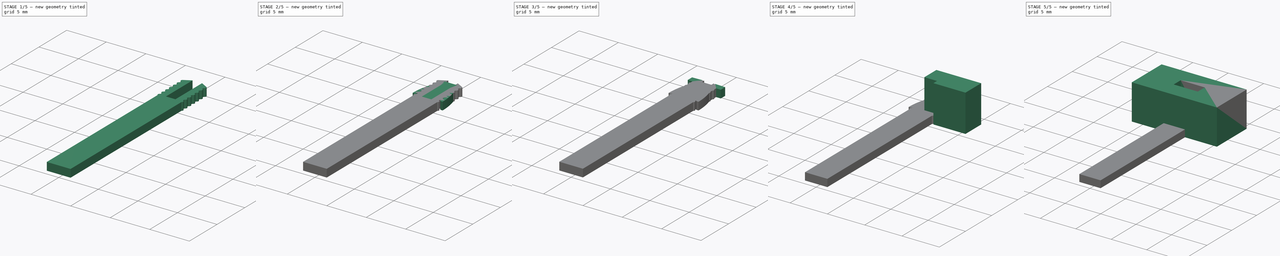
[diagram: build sequence overview — one tinted view per stage of 5, left to right]
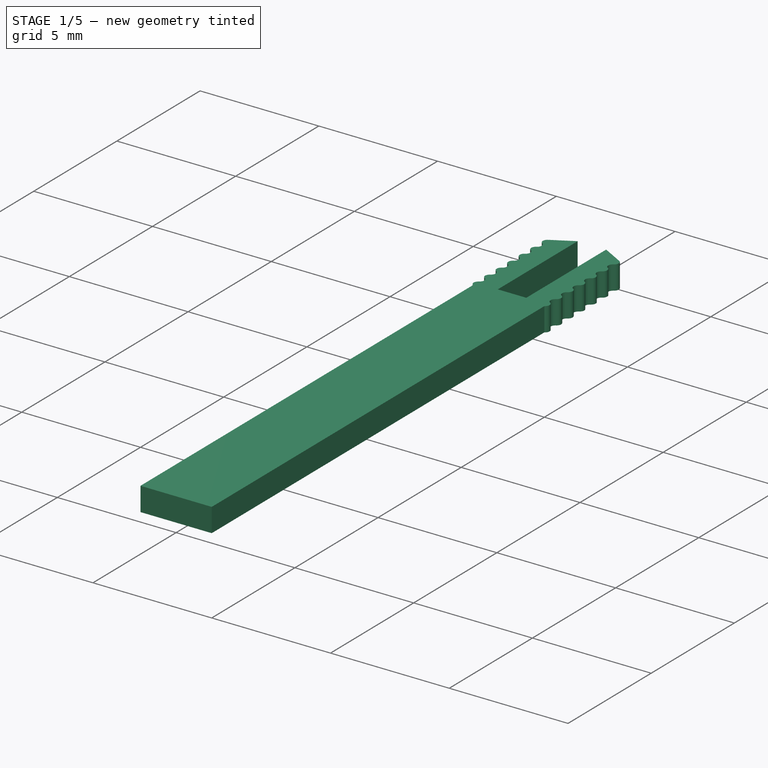
[diagram: stage 1 of 5 — iso view after this stage's code; geometry added in this stage tinted green]
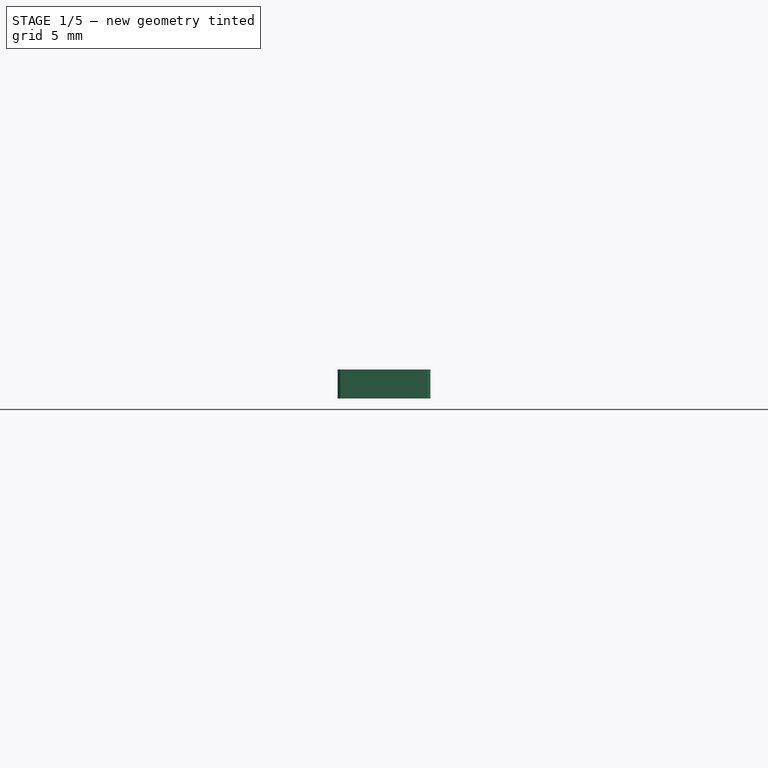
[diagram: stage 1 of 5 — front view after this stage's code; geometry added in this stage tinted green]
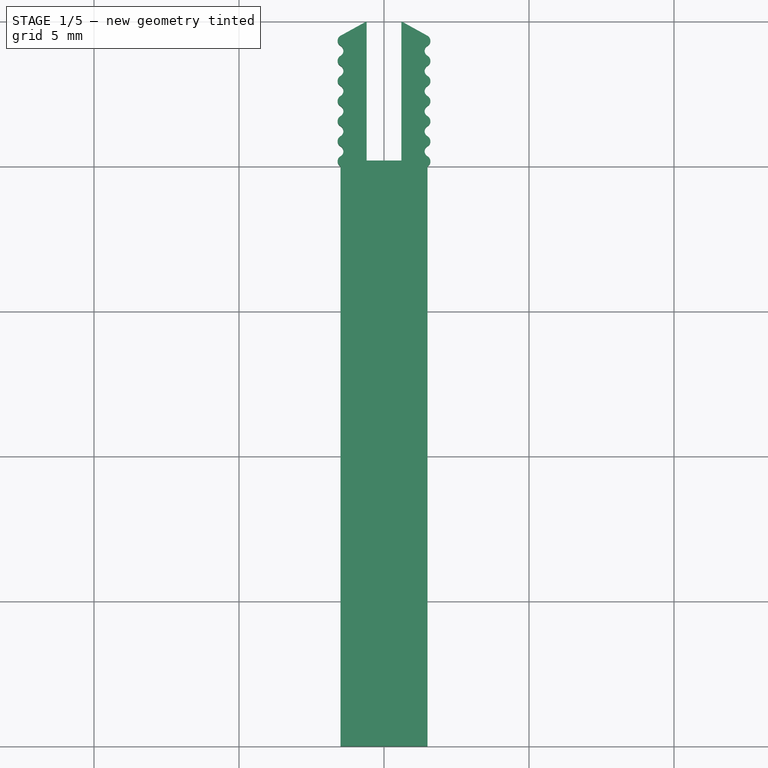
[diagram: stage 1 of 5 — top view after this stage's code; geometry added in this stage tinted green]
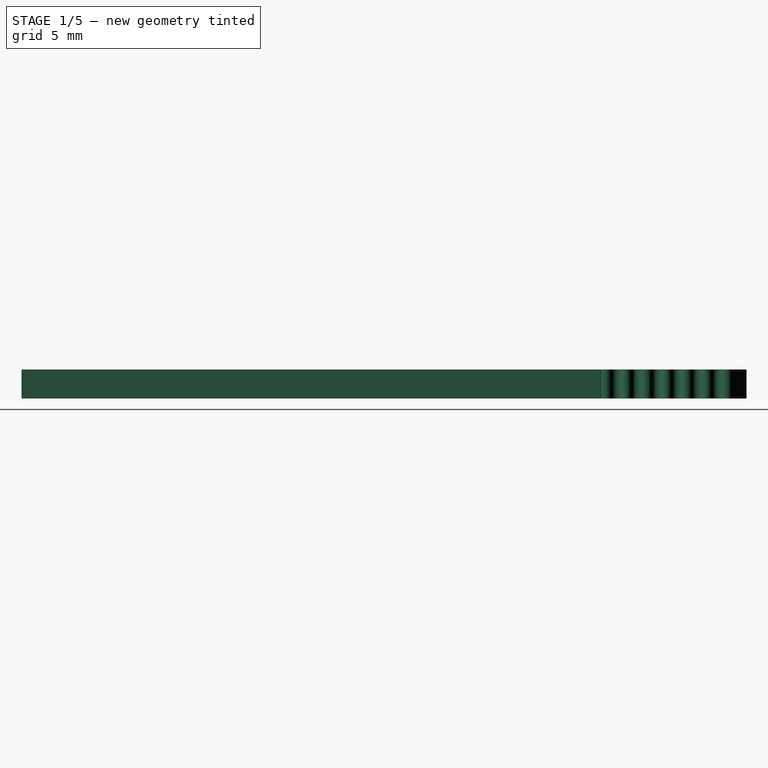
[diagram: stage 1 of 5 — right view after this stage's code; geometry added in this stage tinted green]
FCSTD DOCUMENT  (FreeCAD 1.0R38641 +468 (Git))
Label: pressfit-testing
License: All rights reserved
LicenseURL: http://en.wikipedia.org/wiki/All_rights_reserved
objects: Sketcher::SketchObject×9, PartDesign::Pad×9, PartDesign::Mirrored×7, PartDesign::Body×6, PartDesign::Fillet×2, PartDesign::MultiTransform×1
note: 73 computed .brp shape members not serialized (recipe doc carries the construction recipe); baked Part::Feature solids carry a one-line shape summary decoded from their .brp

FEATURE [PartDesign::Body] Body004  label="Hooks"
  AllowCompound = false
  Group = -> [Sketch007,Pad005,Fillet001,Mirrored006,Pad006]
  Origin = -> Origin004
  Tip = -> Pad006
FEATURE [Sketcher::SketchObject] Sketch008
  ArcFitTolerance = 1e-06
  AttachmentSupport = -> [XY_Plane005]
  FullyConstrained = false
  MakeInternals = false
  MapMode = 5
  sketch-geometry (19):
    g0: LineSegment StartX=0 StartY=0.2 StartZ=0 EndX=0.6 EndY=0.2 EndZ=0
    g1: LineSegment StartX=0.6 StartY=0.2 StartZ=0 EndX=0.6 EndY=5 EndZ=0
    g2: LineSegment StartX=0 StartY=0 StartZ=0 EndX=0 EndY=0.2 EndZ=0
    g3: ArcOfCircle CenterX=1.4 CenterY=4.33013 CenterZ=0 NormalX=0 NormalY=0 NormalZ=1 AngleXU=0 Radius=0.2 StartAngle=5.23599 EndAngle=7.34975
    g4: ArcOfCircle CenterX=1.6 CenterY=3.98372 CenterZ=0 NormalX=0 NormalY=0 NormalZ=1 AngleXU=0 Radius=0.2 StartAngle=2.0944 EndAngle=4.18879
    g5: ArcOfCircle CenterX=1.4 CenterY=3.63731 CenterZ=0 NormalX=0 NormalY=0 NormalZ=1 AngleXU=0 Radius=0.2 StartAngle=5.23599 EndAngle=7.33038
    g6: ArcOfCircle CenterX=1.6 CenterY=3.2909 CenterZ=0 NormalX=0 NormalY=0 NormalZ=1 AngleXU=0 Radius=0.2 StartAngle=2.0944 EndAngle=4.18879
    g7: ArcOfCircle CenterX=1.4 CenterY=2.94449 CenterZ=0 NormalX=0 NormalY=0 NormalZ=1 AngleXU=0 Radius=0.2 StartAngle=5.23599 EndAngle=7.33038
    g8: ArcOfCircle CenterX=1.6 CenterY=2.59808 CenterZ=0 NormalX=0 NormalY=0 NormalZ=1 AngleXU=0 Radius=0.2 StartAngle=2.0944 EndAngle=4.18879
    g9: ArcOfCircle CenterX=1.4 CenterY=2.25167 CenterZ=0 NormalX=0 NormalY=0 NormalZ=1 AngleXU=0 Radius=0.2 StartAngle=5.23599 EndAngle=7.33038
    g10: LineSegment StartX=1.49663 StartY=4.50524 StartZ=0 EndX=0.6 EndY=5 EndZ=0
    g11: LineSegment [constr] StartX=1.4 StartY=4.33013 StartZ=0 EndX=1.4 EndY=-0.280357 EndZ=0
    g12: ArcOfCircle CenterX=1.6 CenterY=1.90526 CenterZ=0 NormalX=0 NormalY=0 NormalZ=1 AngleXU=0 Radius=0.2 StartAngle=2.0944 EndAngle=4.18879
    g13: ArcOfCircle CenterX=1.4 CenterY=1.55885 CenterZ=0 NormalX=0 NormalY=0 NormalZ=1 AngleXU=0 Radius=0.2 StartAngle=5.23599 EndAngle=7.33038
    g14: ArcOfCircle CenterX=1.6 CenterY=1.21244 CenterZ=0 NormalX=0 NormalY=0 NormalZ=1 AngleXU=0 Radius=0.2 StartAngle=2.0944 EndAngle=4.18879
    g15: LineSegment StartX=0 StartY=0 StartZ=0 EndX=1.5 EndY=0 EndZ=0
    g16: ArcOfCircle CenterX=1.4 CenterY=0.866025 CenterZ=0 NormalX=0 NormalY=0 NormalZ=1 AngleXU=0 Radius=0.2 StartAngle=5.23599 EndAngle=7.33038
    g17: ArcOfCircle CenterX=1.6 CenterY=0.519615 CenterZ=0 NormalX=0 NormalY=0 NormalZ=1 AngleXU=0 Radius=0.2 StartAngle=2.0944 EndAngle=4.18879
    g18: ArcOfCircle CenterX=1.4 CenterY=0.173205 CenterZ=0 NormalX=0 NormalY=0 NormalZ=1 AngleXU=0 Radius=0.2 StartAngle=5.23599 EndAngle=7.33038
  constraints (56):
    c: PointOnObject(g0,g-2)
    c: Horizontal(g0)
    c: Coincident(g1,g0)
    c: Vertical(g1)
    c: Coincident(g2,g0)
    c: Tangent(g4,g3) = 1.5708
    c: Tangent(g5,g4) = 1.5708
    c: Tangent(g6,g5) = 1.5708
    c: Tangent(g7,g6) = 1.5708
    c: Tangent(g8,g7) = 1.5708
    c: Tangent(g9,g8) = 1.5708
    c: Equal(g3,g4)
    c: Equal(g4,g5)
    c: Equal(g5,g6)
    c: Equal(g6,g7)
    c: Equal(g7,g8)
    c: Equal(g8,g9)
    c: Vertical(g3,g4)
    c: Vertical(g4,g5)
    c: Vertical(g5,g6)
    c: Vertical(g6,g7)
    c: Vertical(g7,g8)
    c: Distance(g2,g2) = 0.2
    c: DistanceY(g-1,g1) = 5
    c: Coincident(g10,g1)
    c: Tangent(g10,g3) = -1.5708
    c: Coincident(g11,g3)
    c: Vertical(g11)
    c: Coincident(g-1,g2)
    c: Equal(g9,g12)
    c: Equal(g12,g13)
    c: Equal(g13,g14)
    c: Tangent(g12,g9) = 1.5708
    c: Tangent(g13,g12) = 1.5708
    c: Tangent(g14,g13) = 1.5708
    c: Vertical(g14,g13)
    c: Vertical(g13,g12)
    c: Vertical(g12,g9)
    c: Tangent(g4,g11)
    c: Vertical(g9,g8)
    c: Coincident(g15,g2)
    c: Horizontal(g15)
    c: DistanceX(g0,g11) = 0.8
    c: Equal(g16,g14)
    c: Tangent(g16,g14) = 1.5708
    c: Vertical(g14,g16)
    c: DistanceX(g15,g15) = 1.5
    c: Vertical(g15,g16)
    c: Coincident(g17,g16)
    c: Equal(g17,g16)
    c: Tangent(g17,g11)
    c: Equal(g17,g18)
    c: Diameter(g18) = 0.4
    c: Tangent(g18,g17) = 1.5708
    c: Vertical(g17,g16)
    c: Coincident(g15,g18)
FEATURE [PartDesign::Pad] Pad007
  Direction = (0,0,1)
  Length = 1
  Length2 = 10
  Profile = -> Sketch008
  ReferenceAxis = -> Sketch008 [N_Axis]
  Refine = true
  Suppressed = false
  Type = 0
FEATURE [PartDesign::Mirrored] Mirrored007
  BaseFeature = -> Pad007
  MirrorPlane = -> Sketch008 [V_Axis]
  Originals = -> [Pad007]
  Refine = true
  Suppressed = false
  TransformMode = 0
FEATURE [PartDesign::Pad] Pad008
  BaseFeature = -> Mirrored007
  Direction = (0,-1,0)
  Length = 20
  Length2 = 10
  Profile = -> Mirrored007 [Face34]
  Refine = true
  Suppressed = false
  Type = 0
FEATURE [PartDesign::Body] Body005  label="Teeths"
  AllowCompound = false
  Group = -> [Sketch008,Pad007,Mirrored007,Pad008]
  Origin = -> Origin005
  Tip = -> Pad008
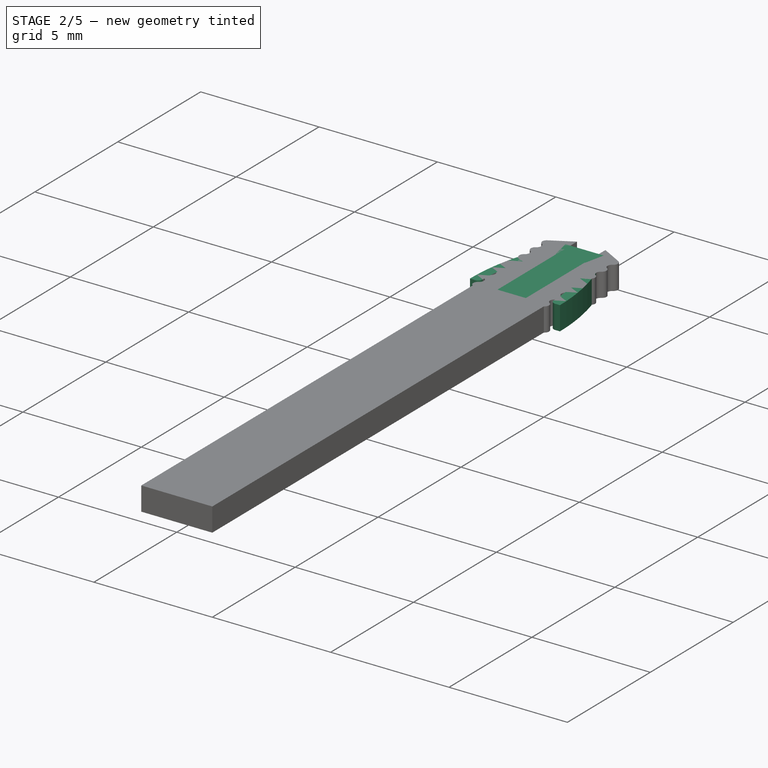
[diagram: stage 2 of 5 — iso view after this stage's code; geometry added in this stage tinted green]
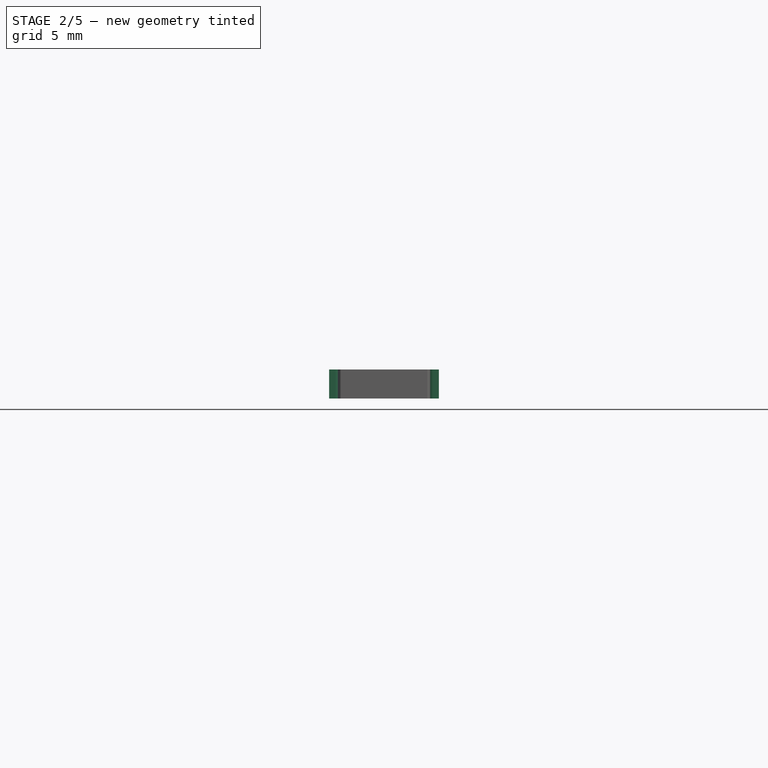
[diagram: stage 2 of 5 — front view after this stage's code; geometry added in this stage tinted green]
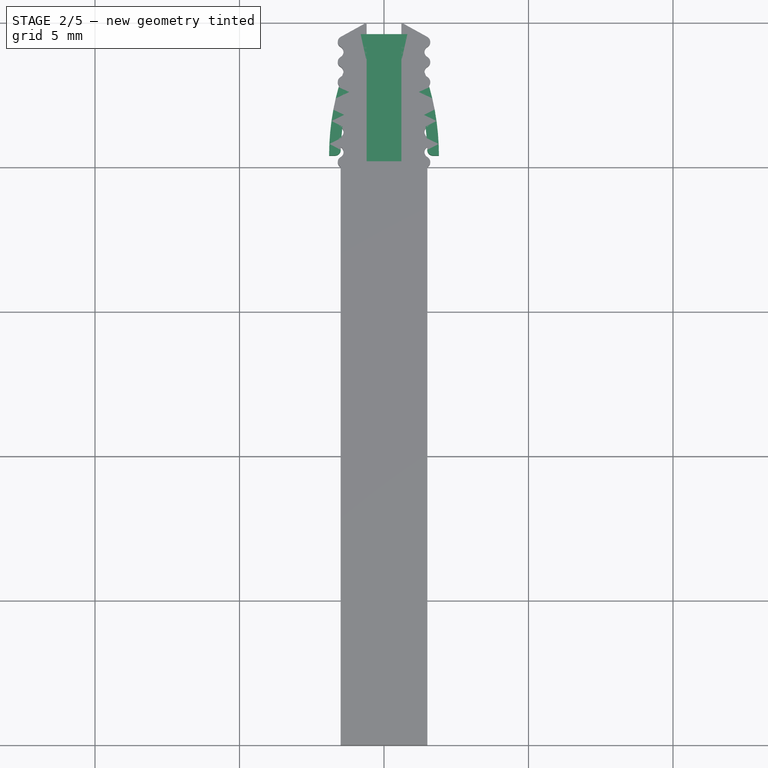
[diagram: stage 2 of 5 — top view after this stage's code; geometry added in this stage tinted green]
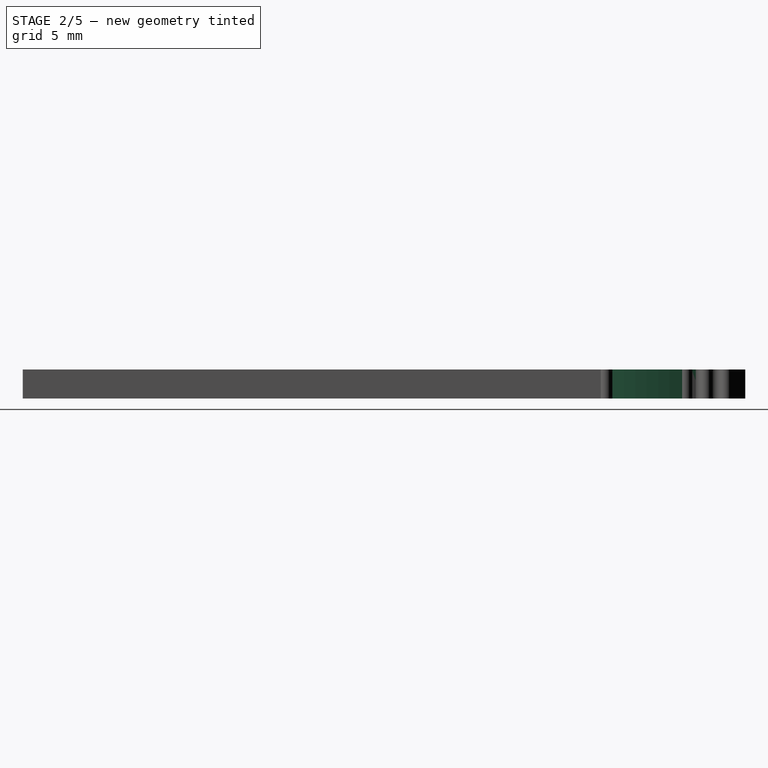
[diagram: stage 2 of 5 — right view after this stage's code; geometry added in this stage tinted green]
FEATURE [PartDesign::Body] Body003  label="Taps3"
  AllowCompound = false
  Group = -> [Sketch006,Pad003,Mirrored005,Pad004]
  Origin = -> Origin003
  Tip = -> Pad004
FEATURE [Sketcher::SketchObject] Sketch007
  ArcFitTolerance = 1e-06
  AttachmentSupport = -> [XY_Plane004]
  FullyConstrained = true
  MakeInternals = false
  MapMode = 5
  sketch-geometry (13):
    g0: LineSegment StartX=0 StartY=0 StartZ=0 EndX=0 EndY=4.6 EndZ=0
    g1: LineSegment StartX=0 StartY=0 StartZ=0 EndX=1.5 EndY=0 EndZ=0
    g2: LineSegment StartX=1.5 StartY=0 StartZ=0 EndX=1.5 EndY=0.2 EndZ=0
    g3: LineSegment StartX=1.9 StartY=0.4 StartZ=0 EndX=1.5 EndY=0.4 EndZ=0
    g4: LineSegment StartX=0.6 StartY=3.7 StartZ=0 EndX=0.6 EndY=0.2 EndZ=0
    g5: LineSegment StartX=0.6 StartY=0.2 StartZ=0 EndX=1.5 EndY=0.2 EndZ=0
    g6: Circle [constr] CenterX=1.69763 CenterY=0.6 CenterZ=0 NormalX=0 NormalY=0 NormalZ=1 AngleXU=0 Radius=0.2
    g7: ArcOfCircle CenterX=-6.72857 CenterY=0.4 CenterZ=0 NormalX=0 NormalY=0 NormalZ=1 AngleXU=0 Radius=8.62857 StartAngle=0 EndAngle=0.508371
    g8: ArcOfCircle CenterX=-6.72857 CenterY=0.4 CenterZ=0 NormalX=0 NormalY=0 NormalZ=1 AngleXU=0 Radius=8.22857 StartAngle=0 EndAngle=0.418046
    g9: ArcOfCircle CenterX=0.7 CenterY=3.7 CenterZ=0 NormalX=0 NormalY=0 NormalZ=1 AngleXU=0 Radius=0.1 StartAngle=0.418046 EndAngle=3.14159
    g10: LineSegment StartX=0.808818 StartY=4.6 StartZ=0 EndX=0 EndY=4.6 EndZ=0
    g11: LineSegment [constr] StartX=0.7 StartY=3.7 StartZ=0 EndX=1.9 EndY=0.4 EndZ=0
    g12: LineSegment [constr] StartX=0.7 StartY=3.7 StartZ=0 EndX=1.48243 EndY=0.276872 EndZ=0
  constraints (37):
    c: Coincident(g0,g-1)
    c: DistanceY(g0,g0) = 4.6
    c: Coincident(g1,g0)
    c: PointOnObject(g1,g-1)
    c: DistanceX(g1,g1) = 1.5
    c: Coincident(g2,g1)
    c: Vertical(g2)
    c: Horizontal(g3)
    c: DistanceY(g2,g2) = 0.2
    c: Vertical(g4)
    c: Coincident(g5,g2)
    c: Horizontal(g5)
    c: Tangent(g3,g6)
    c: Coincident(g3,g7)
    c: Tangent(g6,g7)
    c: Coincident(g8,g3)
    c: Tangent(g8,g6)
    c: Coincident(g8,g7)
    c: Perpendicular(g7,g3)
    c: PointOnObject(g0,g-2)
    c: DistanceX(g5,g5) = 0.9
    c: Diameter(g9) = 0.2
    c: Tangent(g9,g4) = -1.5708
    c: Tangent(g9,g8) = -1.5708
    c: DistanceY(g2,g3) = 0.2
    c: Coincident(g10,g7)
    c: Coincident(g10,g0)
    c: Horizontal(g10)
    c: Coincident(g5,g4)
    c: PointOnObject(g3,g2)
    c: Coincident(g11,g9)
    c: Coincident(g11,g3)
    c: Coincident(g12,g9)
    c: PointOnObject(g2,g12)
    c: Equal(g11,g12)
    c: Diameter(g6) = 0.4
    c: Distance(g9,g10) = 0.8
FEATURE [PartDesign::Pad] Pad005
  Direction = (0,0,1)
  Length = 1
  Length2 = 10
  Profile = -> Sketch007
  ReferenceAxis = -> Sketch007 [N_Axis]
  Refine = true
  Suppressed = false
  Type = 0
FEATURE [PartDesign::Fillet] Fillet001
  Base = -> Pad005 [Edge2]
  BaseFeature = -> Pad005
  Radius = 0.2
  Refine = true
  SupportTransform = false
  Suppressed = false
  UseAllEdges = false
FEATURE [PartDesign::Mirrored] Mirrored006
  BaseFeature = -> Fillet001
  MirrorPlane = -> Sketch007 [V_Axis]
  Originals = -> [Pad005,Fillet001]
  Refine = true
  Suppressed = false
  TransformMode = 0
FEATURE [PartDesign::Pad] Pad006
  BaseFeature = -> Mirrored006
  Direction = (0,-1,0)
  Length = 20
  Length2 = 10
  Profile = -> Mirrored006 [Face20]
  Refine = true
  Suppressed = false
  Type = 0
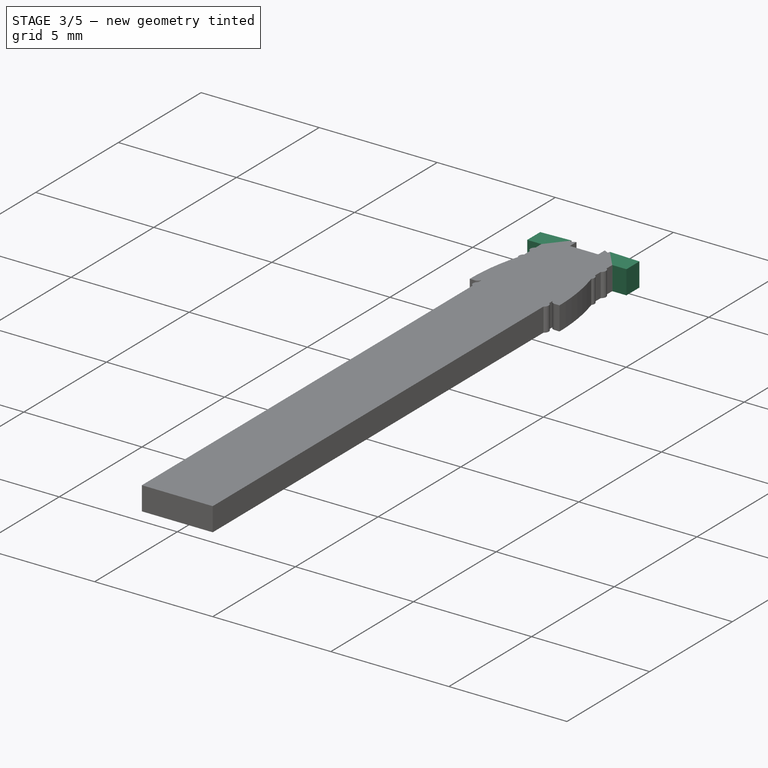
[diagram: stage 3 of 5 — iso view after this stage's code; geometry added in this stage tinted green]
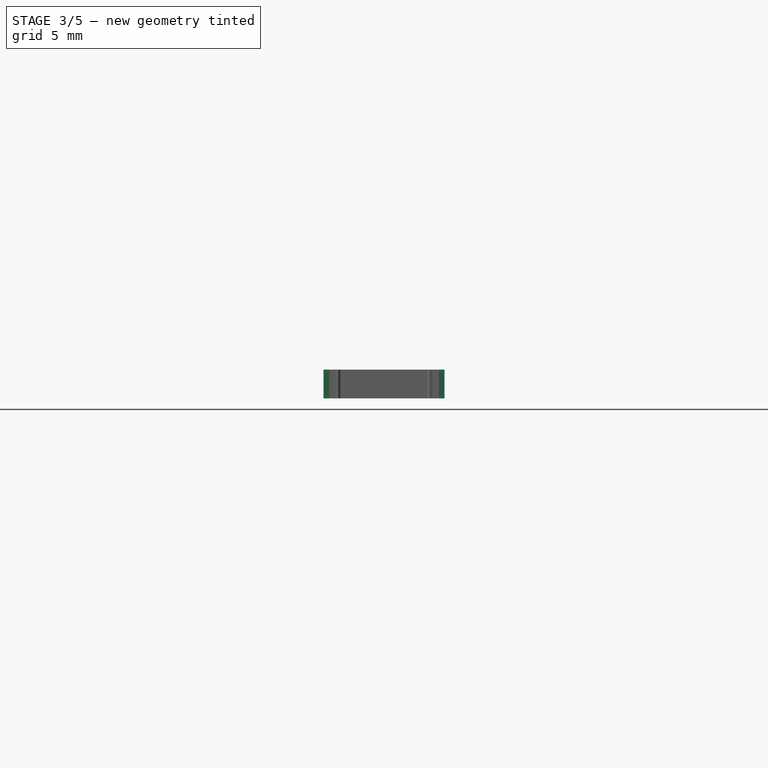
[diagram: stage 3 of 5 — front view after this stage's code; geometry added in this stage tinted green]
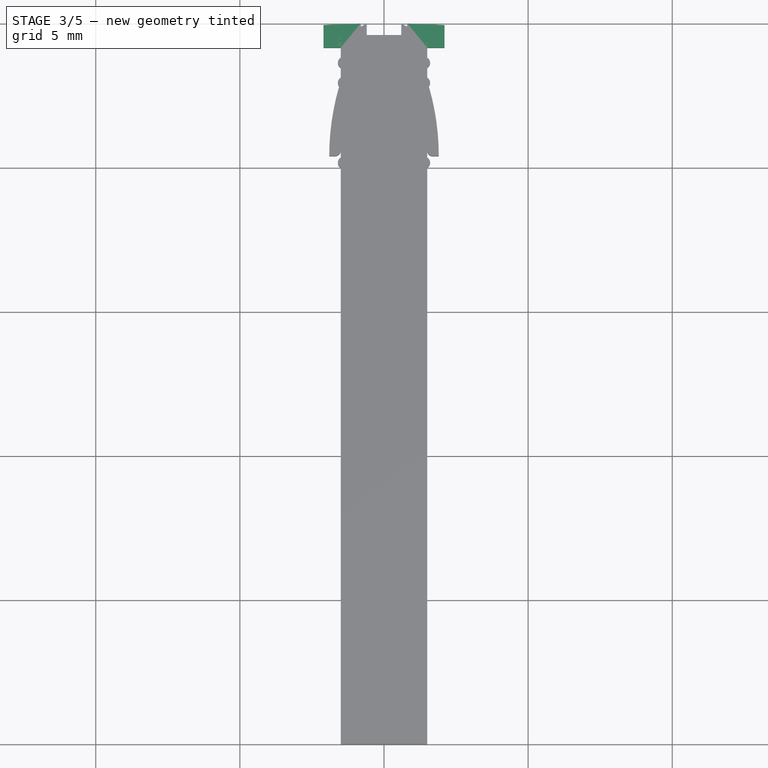
[diagram: stage 3 of 5 — top view after this stage's code; geometry added in this stage tinted green]
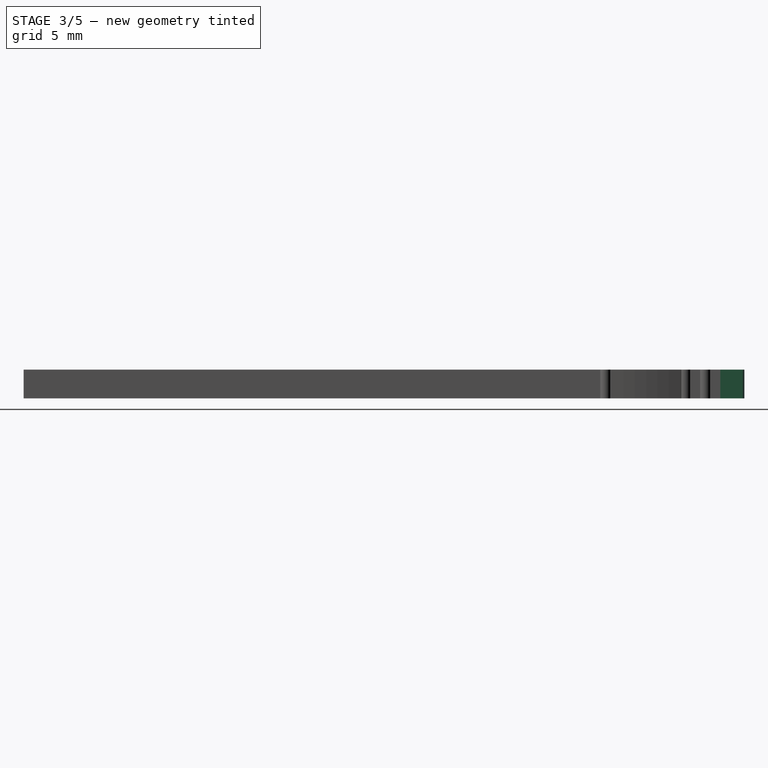
[diagram: stage 3 of 5 — right view after this stage's code; geometry added in this stage tinted green]
FEATURE [PartDesign::Body] Body001  label="Taps2"
  AllowCompound = false
  Group = -> [Sketch002,Sketch003,Pad001,Fillet,Mirrored004]
  Origin = -> Origin001
  Tip = -> Mirrored004
FEATURE [Sketcher::SketchObject] Sketch006
  ArcFitTolerance = 1e-06
  AttachmentSupport = -> [XY_Plane003]
  FullyConstrained = true
  MakeInternals = false
  MapMode = 5
  sketch-geometry (11):
    g0: LineSegment StartX=0 StartY=0 StartZ=0 EndX=1.5 EndY=0 EndZ=0
    g1: LineSegment StartX=1.5 StartY=0 StartZ=0 EndX=1.5 EndY=4.16097 EndZ=0
    g2: LineSegment StartX=1.5 StartY=4.16097 StartZ=0 EndX=2.1 EndY=4.16097 EndZ=0
    g3: LineSegment StartX=0.0988791 StartY=0.28507 StartZ=0 EndX=0.810822 EndY=5 EndZ=0
    g4: LineSegment StartX=0.810822 StartY=5 StartZ=0 EndX=2.1 EndY=4.94396 EndZ=0
    g5: LineSegment StartX=2.1 StartY=4.16097 StartZ=0 EndX=2.1 EndY=4.94396 EndZ=0
    g6: Circle [constr] CenterX=1.7 CenterY=4.56097 CenterZ=0 NormalX=0 NormalY=0 NormalZ=1 AngleXU=0 Radius=0.4
    g7: LineSegment [constr] StartX=0.715692 StartY=4.36999 StartZ=0 EndX=2.1 EndY=4.16097 EndZ=0
    g8: LineSegment [constr] StartX=2.1 StartY=4.94396 StartZ=0 EndX=1.35348 EndY=0 EndZ=0
    g9: LineSegment StartX=0 StartY=0 StartZ=0 EndX=0 EndY=0.2 EndZ=0
    g10: ArcOfCircle CenterX=0 CenterY=0.3 CenterZ=0 NormalX=0 NormalY=0 NormalZ=1 AngleXU=0 Radius=0.1 StartAngle=4.71239 EndAngle=6.13332
  constraints (32):
    c: PointOnObject(g0,g-1)
    c: Coincident(g1,g0)
    c: Vertical(g1)
    c: DistanceX(g0,g0) = 1.5
    c: Coincident(g2,g1)
    c: Horizontal(g2)
    c: Coincident(g4,g3)
    c: Coincident(g5,g2)
    c: Coincident(g5,g4)
    c: Vertical(g5)
    c: Tangent(g6,g2)
    c: Tangent(g6,g5)
    c: Tangent(g6,g4)
    c: Diameter(g6) = 0.8
    c: DistanceY(g0,g3) = 5
    c: PointOnObject(g7,g3)
    c: Coincident(g7,g2)
    c: Perpendicular(g3,g7)
    c: Distance(g7,g7) = 1.4
    c: Parallel(g8,g3)
    c: Coincident(g4,g8)
    c: Distance(g8,g8) = 5
    c: Distance(g2,g2) = 0.6
    c: PointOnObject(g8,g-1)
    c: Coincident(g0,g-1)
    c: Coincident(g9,g0)
    c: Distance(g9,g9) = 0.2
    c: Coincident(g10,g9)
    c: PointOnObject(g9,g-2)
    c: Tangent(g10,g3) = -1.5708
    c: Diameter(g10) = 0.2
    c: Perpendicular(g10,g9)
FEATURE [PartDesign::Pad] Pad003
  Direction = (0,0,1)
  Length = 1
  Length2 = 10
  Profile = -> Sketch006
  ReferenceAxis = -> Sketch006 [N_Axis]
  Refine = true
  Suppressed = false
  Type = 0
FEATURE [PartDesign::Mirrored] Mirrored005
  BaseFeature = -> Pad003
  MirrorPlane = -> Sketch006 [V_Axis]
  Originals = -> [Pad003]
  Refine = true
  Suppressed = false
  TransformMode = 0
FEATURE [PartDesign::Pad] Pad004
  BaseFeature = -> Mirrored005
  Direction = (0,-1,0)
  Length = 20
  Length2 = 10
  Profile = -> Mirrored005 [Face6]
  Refine = true
  Suppressed = false
  Type = 0
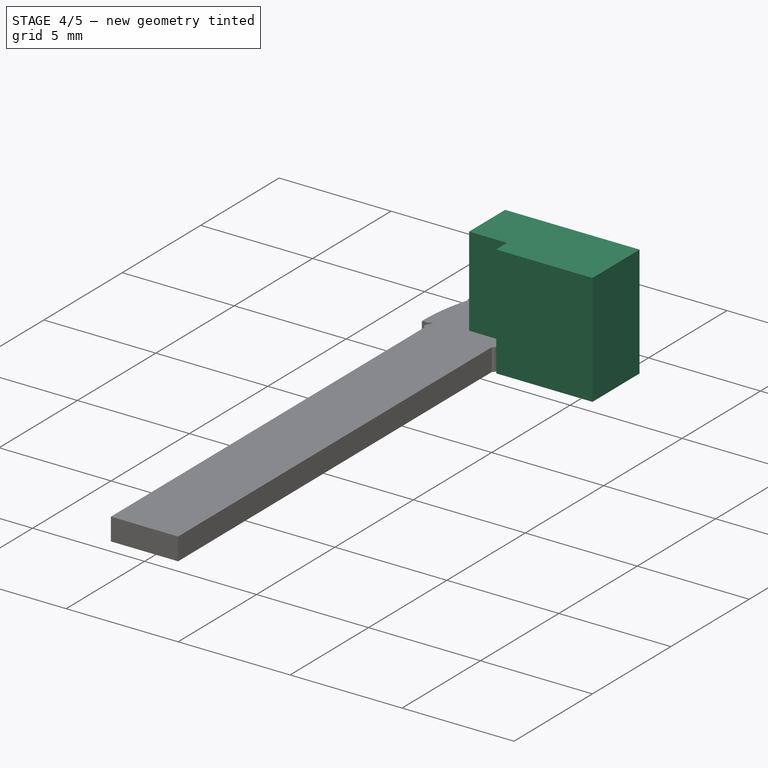
[diagram: stage 4 of 5 — iso view after this stage's code; geometry added in this stage tinted green]
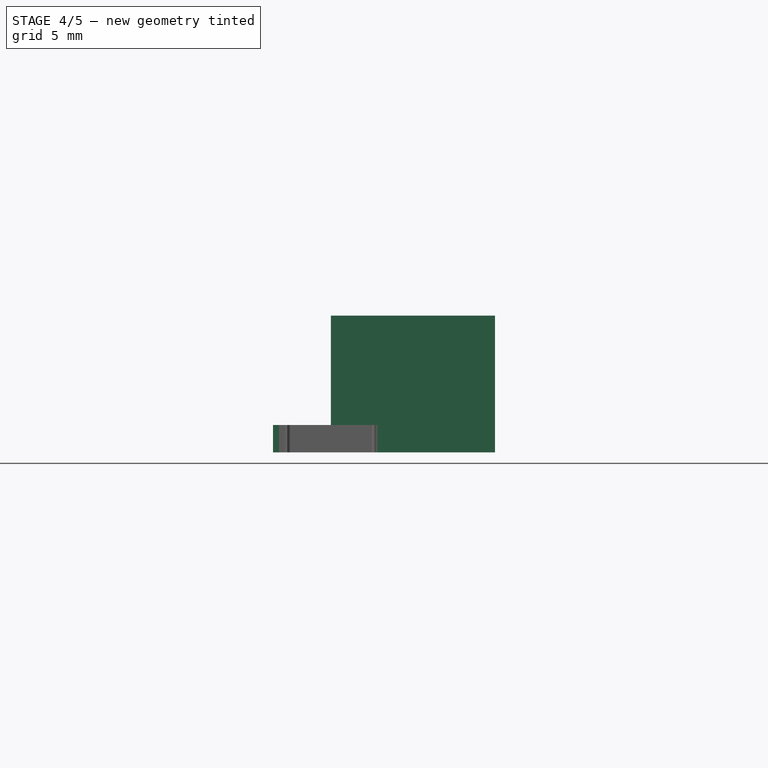
[diagram: stage 4 of 5 — front view after this stage's code; geometry added in this stage tinted green]
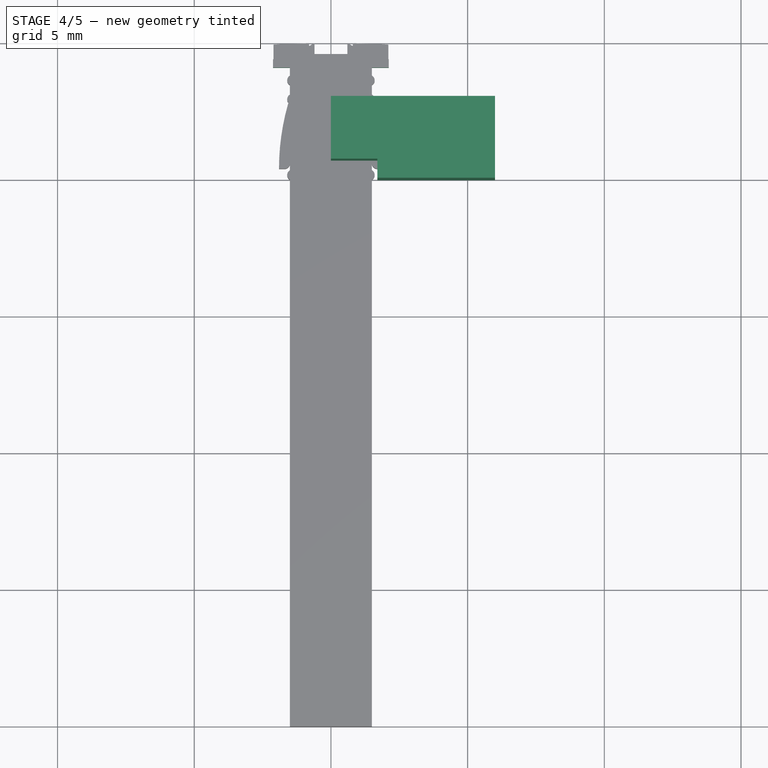
[diagram: stage 4 of 5 — top view after this stage's code; geometry added in this stage tinted green]
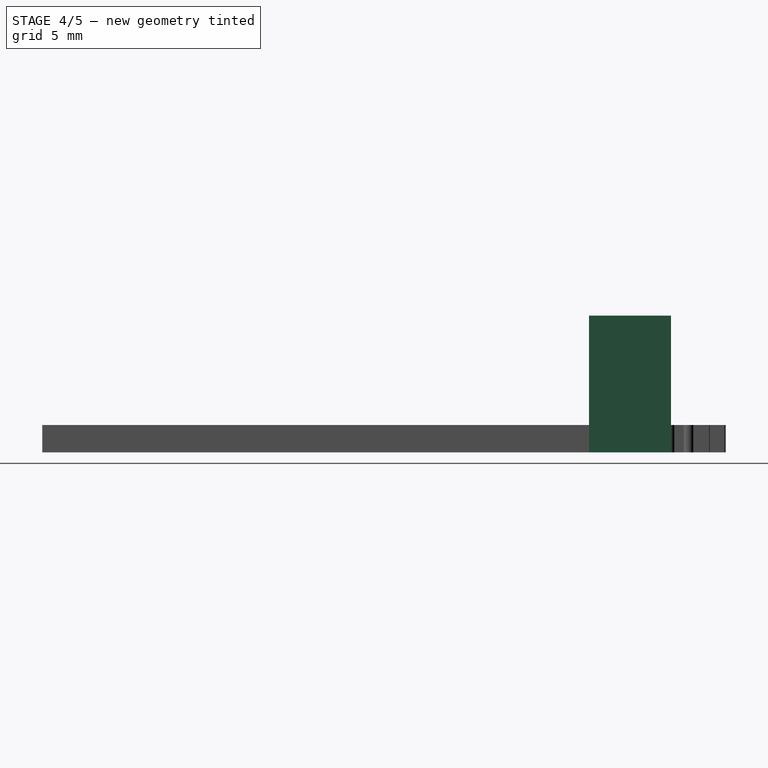
[diagram: stage 4 of 5 — right view after this stage's code; geometry added in this stage tinted green]
FEATURE [PartDesign::Body] Body  label="Taps"
  AllowCompound = false
  Group = -> [Sketch,Sketch001,Pad,Mirrored]
  Origin = -> Origin
  Tip = -> Mirrored
FEATURE [Sketcher::SketchObject] Sketch002
  ArcFitTolerance = 1e-06
  AttachmentSupport = -> [XY_Plane001]
  FullyConstrained = false
  MakeInternals = false
  MapMode = 5
  sketch-geometry (12):
    g0: LineSegment StartX=0.721954 StartY=-0.186132 StartZ=0 EndX=0 EndY=2.83169 EndZ=0
    g1: LineSegment StartX=0 StartY=2.83169 StartZ=0 EndX=0 EndY=3.7041 EndZ=0
    g2: LineSegment StartX=1.5 StartY=0 StartZ=0 EndX=0.8 EndY=2.92605 EndZ=0
    g3: LineSegment StartX=0.8 StartY=2.92605 StartZ=0 EndX=1.4 EndY=3.06959 EndZ=0
    g4: LineSegment StartX=1.4 StartY=3.06959 StartZ=0 EndX=1.33143 EndY=3.35621 EndZ=0
    g5: LineSegment StartX=0.613868 StartY=3.7041 StartZ=0 EndX=1.33143 EndY=3.35621 EndZ=0
    g6: LineSegment StartX=0.721954 StartY=-0.186132 StartZ=0 EndX=1.5 EndY=0 EndZ=0
    g7: LineSegment StartX=0 StartY=3.7041 StartZ=0 EndX=0.613868 EndY=3.7041 EndZ=0
    g8: GeomPoint [constr] X=-0.208706 Y=3.7041 Z=0
    g9: Circle [constr] CenterX=1.15896 CenterY=3.21757 CenterZ=0 NormalX=0 NormalY=0 NormalZ=1 AngleXU=0 Radius=0.2
    g10: LineSegment [constr] StartX=1.5 StartY=0 StartZ=0 EndX=1.5 EndY=4.92181 EndZ=0
    g11: ArcOfCircle [constr] CenterX=0.8 CenterY=2.92605 CenterZ=0 NormalX=0 NormalY=0 NormalZ=1 AngleXU=0 Radius=0.8 StartAngle=2.56534 EndAngle=3.37517
  constraints (34):
    c: Coincident(g1,g0)
    c: Coincident(g3,g2)
    c: Coincident(g4,g3)
    c: Coincident(g5,g4)
    c: Coincident(g6,g0)
    c: Coincident(g6,g2)
    c: Perpendicular(g0,g6)
    c: Perpendicular(g3,g2)
    c: Perpendicular(g2,g6)
    c: Perpendicular(g4,g3)
    c: PointOnObject(g1,g-2)
    c: Coincident(g7,g1)
    c: Coincident(g7,g5)
    c: PointOnObject(g8,g0)
    c: PointOnObject(g8,g7)
    c: Distance(g8,g0) = 4
    c: PointOnObject(g2,g-1)
    c: DistanceX(g-1,g2) = 1.5
    c: Horizontal(g7)
    c: PointOnObject(g5,g2)
    c: Diameter(g9) = 0.4  'Nozzle diameter'
    c: Tangent(g9,g3)
    c: Tangent(g9,g4)
    c: Tangent(g9,g5)
    c: Coincident(g10,g2)
    c: Vertical(g10)
    c: Distance(g3,g3) = 0.61693  'HookDepth'
    c: PointOnObject(g0,g-2)
    c: Coincident(g11,g2)
    c: Tangent(g11,g0)
    c: Tangent(g11,g1)
    c: Distance(g3,g10) = 0.1
    c: Radius(g11) = 0.8
    c: Distance(g5,g2) = 0.8
FEATURE [Sketcher::SketchObject] Sketch003
  ArcFitTolerance = 1e-06
  AttachmentSupport = -> [XY_Plane001]
  ExternalGeometry = -> [Sketch002]
  FullyConstrained = true
  MakeInternals = false
  MapMode = 5
  sketch-geometry (12):
    g0: LineSegment StartX=1.5 StartY=1.09436 StartZ=0 EndX=1.5 EndY=4.10298 EndZ=0
    g1: LineSegment StartX=0 StartY=0 StartZ=0 EndX=1.5 EndY=0 EndZ=0
    g2: LineSegment StartX=0.7 StartY=4.10298 StartZ=0 EndX=0.92413 EndY=4.9461 EndZ=0
    g3: LineSegment StartX=0.92413 StartY=4.9461 StartZ=0 EndX=1.538 EndY=4.9461 EndZ=0
    g4: LineSegment StartX=1.538 StartY=4.9461 StartZ=0 EndX=2.11693 EndY=4.39769 EndZ=0
    g5: LineSegment StartX=2.11693 StartY=4.39769 StartZ=0 EndX=2.11693 EndY=4.10298 EndZ=0
    g6: LineSegment StartX=1.5 StartY=4.10298 StartZ=0 EndX=2.11693 EndY=4.10298 EndZ=0
    g7: LineSegment StartX=0.7 StartY=4.10298 StartZ=0 EndX=0.7 EndY=1 EndZ=0
    g8: LineSegment StartX=0 StartY=0 StartZ=0 EndX=0 EndY=1 EndZ=0
    g9: LineSegment StartX=0 StartY=1 StartZ=0 EndX=0.7 EndY=1 EndZ=0
    g10: LineSegment [constr] StartX=0.7 StartY=4.10298 StartZ=0 EndX=1.5 EndY=4.10298 EndZ=0
    g11: LineSegment StartX=1.5 StartY=0 StartZ=0 EndX=1.5 EndY=1.09436 EndZ=0
  constraints (34):
    c: Vertical(g0)
    c: Coincident(g3,g2)
    c: Horizontal(g3)
    c: Coincident(g4,g3)
    c: Coincident(g5,g4)
    c: Vertical(g5)
    c: Coincident(g6,g0)
    c: Coincident(g6,g5)
    c: Horizontal(g6)
    c: Equal(g-7,g3)
    c: Equal(g-8,g4)
    c: Equal(g-9,g5)
    c: Equal(g-6,g6)
    c: Equal(g-5,g0)
    c: Equal(g-10,g2)
    c: Coincident(g7,g2)
    c: Coincident(g9,g8)
    c: Coincident(g9,g7)
    c: Horizontal(g9)
    c: Perpendicular(g7,g9)
    c: PointOnObject(g2,g6)
    c: Coincident(g10,g2)
    c: Coincident(g10,g0)
    c: Equal(g10,g-4)
    c: DistanceX(g1,g1) = 1.5
    c: Coincident(g11,g1)
    c: Coincident(g11,g0)
    c: Vertical(g11)
    c: Equal(g7,g-3)
    c: Coincident(g1,g8)
    c: Perpendicular(g8,g1)
    c: PointOnObject(g8,g-2)
    c: DistanceY(g-1,g8) = 1
    c: Coincident(g1,g-1)
FEATURE [PartDesign::Pad] Pad001
  Direction = (0,0,1)
  Length = 1
  Length2 = 10
  Profile = -> Sketch003
  ReferenceAxis = -> Sketch003 [N_Axis]
  Refine = true
  Suppressed = false
  Type = 0
FEATURE [Sketcher::SketchObject] Sketch004
  ArcFitTolerance = 1e-06
  AttachmentSupport = -> [XY_Plane002]
  FullyConstrained = true
  MakeInternals = false
  MapMode = 5
  expr: Constraints[14] = 1.5 + 0.2
  expr: Constraints[15] = 0.5 mm + 0.2 mm
  sketch-geometry (6):
    g0: LineSegment StartX=6 StartY=0 StartZ=0 EndX=6 EndY=3 EndZ=0
    g1: LineSegment StartX=6 StartY=3 StartZ=0 EndX=0 EndY=3 EndZ=0
    g2: LineSegment StartX=0 StartY=3 StartZ=0 EndX=0 EndY=0.7 EndZ=0
    g3: LineSegment StartX=6 StartY=0 StartZ=0 EndX=1.7 EndY=0 EndZ=0
    g4: LineSegment StartX=1.7 StartY=0 StartZ=0 EndX=1.7 EndY=0.7 EndZ=0
    g5: LineSegment StartX=1.7 StartY=0.7 StartZ=0 EndX=0 EndY=0.7 EndZ=0
  constraints (18):
    c: Coincident(g0,g1)
    c: Coincident(g1,g2)
    c: Horizontal(g1)
    c: Vertical(g0)
    c: Vertical(g2)
    c: Coincident(g3,g4)
    c: Coincident(g4,g5)
    c: Horizontal(g3)
    c: Horizontal(g5)
    c: Vertical(g4)
    c: Coincident(g3,g0)
    c: Coincident(g2,g5)
    c: PointOnObject(g2,g-2)
    c: PointOnObject(g3,g-1)
    c: DistanceX(g-1,g3) = 1.7
    c: DistanceY(g-1,g2) = 0.7
    c: DistanceX(g1,g1) = 6
    c: DistanceY(g0,g0) = 3
FEATURE [PartDesign::Pad] Pad002
  Direction = (0,0,1)
  Length = 5
  Length2 = 10
  Profile = -> Sketch004
  ReferenceAxis = -> Sketch004 [N_Axis]
  Refine = true
  Suppressed = false
  Type = 0
FEATURE [PartDesign::Body] Body002  label="Block"
  AllowCompound = false
  Group = -> [Sketch004,Pad002,Sketch005,MultiTransform,Mirrored002,Mirrored003]
  Origin = -> Origin002
  Tip = -> MultiTransform
FEATURE [PartDesign::Fillet] Fillet
  Base = -> Pad001 [Edge24]
  BaseFeature = -> Pad001
  Radius = 0.4
  Refine = true
  SupportTransform = false
  Suppressed = false
  UseAllEdges = false
FEATURE [PartDesign::Mirrored] Mirrored004
  BaseFeature = -> Fillet
  MirrorPlane = -> Sketch003 [V_Axis]
  Originals = -> [Pad001,Fillet]
  Refine = true
  Suppressed = false
  TransformMode = 0
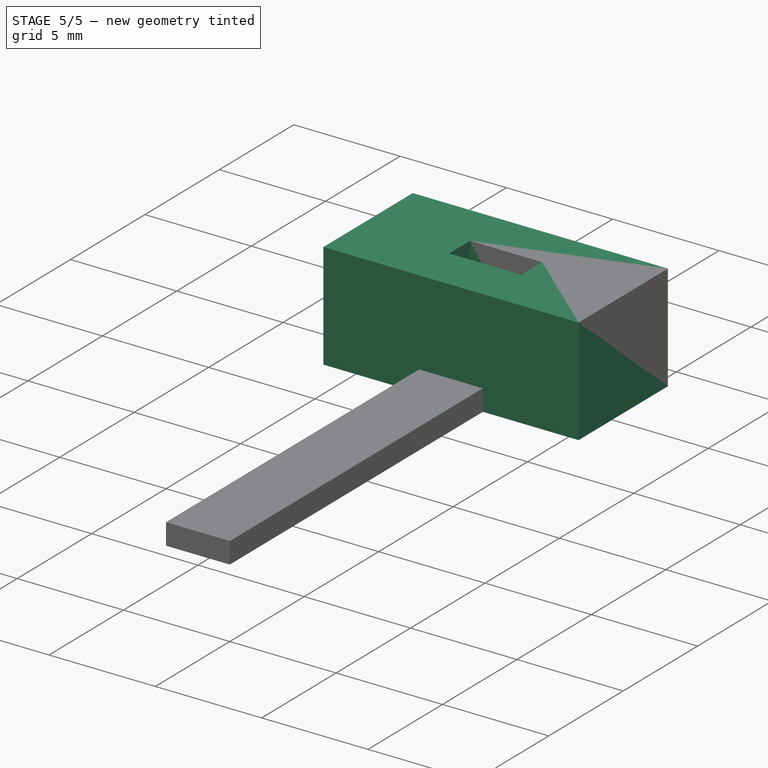
[diagram: stage 5 of 5 — iso view after this stage's code; geometry added in this stage tinted green]
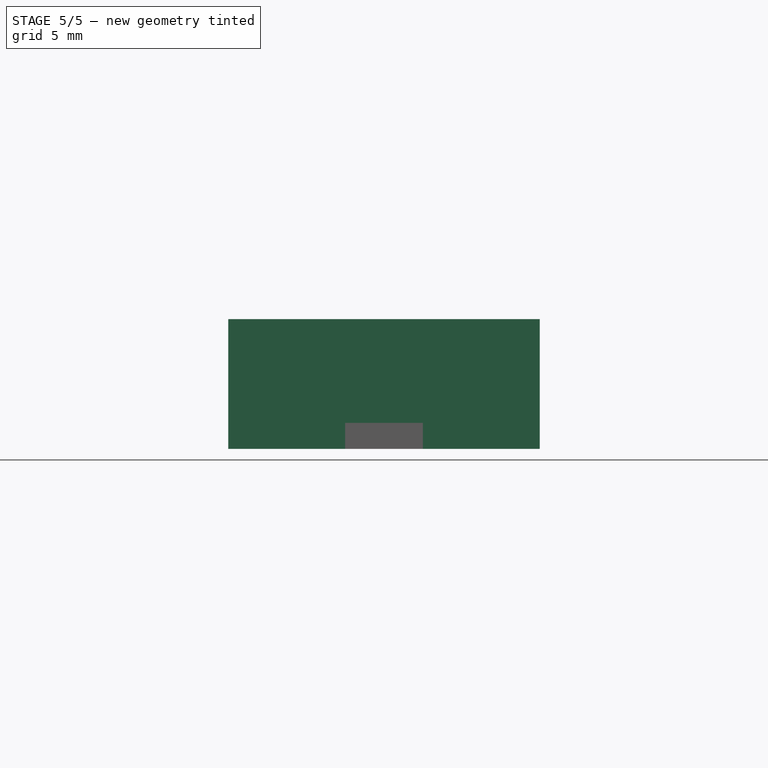
[diagram: stage 5 of 5 — front view after this stage's code; geometry added in this stage tinted green]
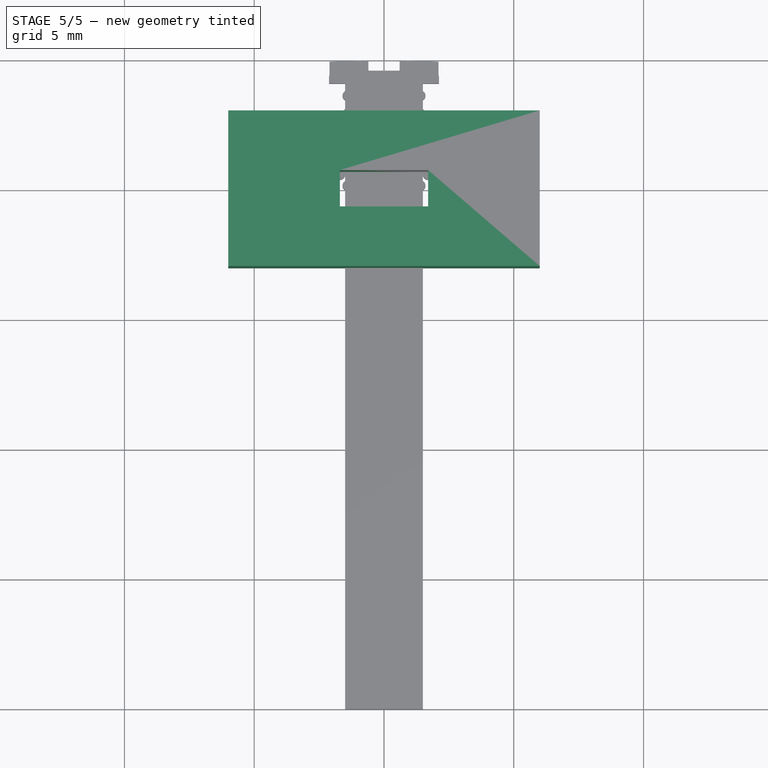
[diagram: stage 5 of 5 — top view after this stage's code; geometry added in this stage tinted green]
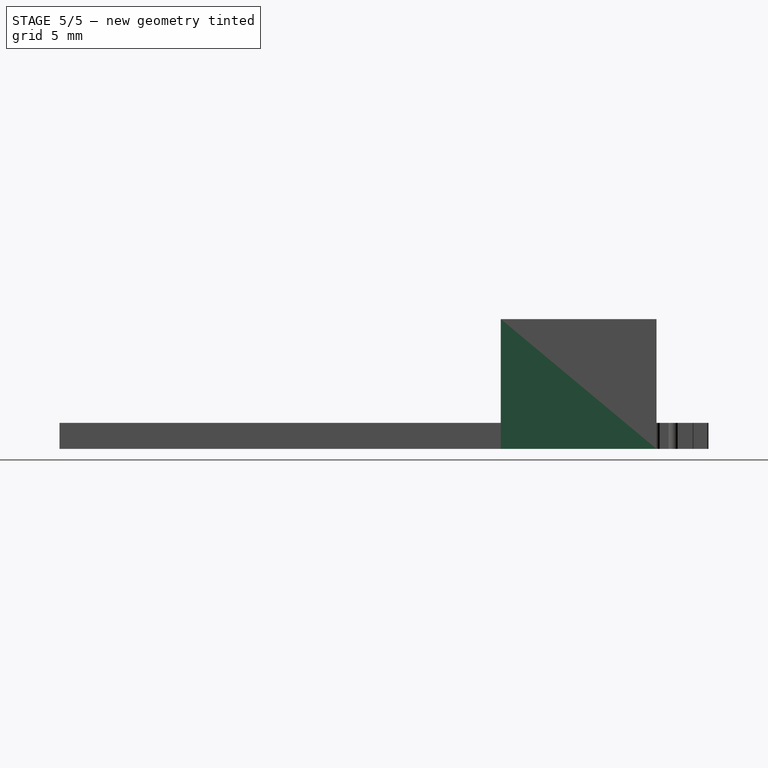
[diagram: stage 5 of 5 — right view after this stage's code; geometry added in this stage tinted green]
FEATURE [Sketcher::SketchObject] Sketch
  ArcFitTolerance = 1e-06
  AttachmentSupport = -> [XY_Plane]
  FullyConstrained = false
  MakeInternals = false
  MapMode = 5
  sketch-geometry (7):
    g0: LineSegment StartX=1.5 StartY=0.142561 StartZ=0 EndX=0.909604 EndY=3.40262 EndZ=0
    g1: LineSegment StartX=0.909604 StartY=3.40262 StartZ=0 EndX=1.5 EndY=3.50954 EndZ=0
    g2: LineSegment StartX=0 StartY=3.93598 StartZ=0 EndX=0.712805 EndY=0 EndZ=0
    g3: LineSegment StartX=1.5 StartY=3.50954 StartZ=0 EndX=1.42277 EndY=3.93598 EndZ=0
    g4: LineSegment StartX=1.42277 StartY=3.93598 StartZ=0 EndX=0 EndY=3.93598 EndZ=0
    g5: LineSegment StartX=0.712805 StartY=0 StartZ=0 EndX=1.5 EndY=0.142561 EndZ=0
    g6: LineSegment [constr] StartX=1.5 StartY=0 StartZ=0 EndX=1.5 EndY=4.51585 EndZ=0
  constraints (20):
    c: Coincident(g1,g0)
    c: Coincident(g3,g1)
    c: Coincident(g4,g3)
    c: Coincident(g5,g0)
    c: Coincident(g5,g2)
    c: Perpendicular(g5,g2)
    c: Perpendicular(g0,g5)
    c: Perpendicular(g0,g1)
    c: Distance(g5,g5) = 0.8
    c: Distance(g2,g2) = 4
    c: PointOnObject(g2,g-1)
    c: PointOnObject(g6,g-1)
    c: DistanceX(g-1,g6) = 1.5
    c: Perpendicular(g-1,g6)
    c: PointOnObject(g0,g6)
    c: Perpendicular(g3,g1)
    c: PointOnObject(g1,g6)
    c: Distance(g1,g1) = 0.6
    c: Coincident(g2,g4)
    c: Horizontal(g4)
FEATURE [Sketcher::SketchObject] Sketch001
  ArcFitTolerance = 1e-06
  AttachmentSupport = -> [XY_Plane]
  ExternalGeometry = -> [Sketch]
  FullyConstrained = true
  MakeInternals = false
  MapMode = 5
  sketch-geometry (9):
    g0: LineSegment StartX=0.7 StartY=5 StartZ=0 EndX=2.1 EndY=4.74646 EndZ=0
    g1: LineSegment StartX=2.1 StartY=4.74646 StartZ=0 EndX=2.1 EndY=4.31309 EndZ=0
    g2: LineSegment StartX=2.1 StartY=4.31309 StartZ=0 EndX=1.5 EndY=4.31309 EndZ=0
    g3: LineSegment StartX=0 StartY=0 StartZ=0 EndX=1.5 EndY=0 EndZ=0
    g4: LineSegment StartX=0 StartY=0 StartZ=0 EndX=0 EndY=1 EndZ=0
    g5: LineSegment StartX=0 StartY=1 StartZ=0 EndX=0.7 EndY=1 EndZ=0
    g6: LineSegment StartX=0.7 StartY=1 StartZ=0 EndX=0.7 EndY=5 EndZ=0
    g7: LineSegment StartX=1.5 StartY=4.31309 StartZ=0 EndX=1.5 EndY=1 EndZ=0
    g8: LineSegment StartX=1.5 StartY=0 StartZ=0 EndX=1.5 EndY=1 EndZ=0
  constraints (27):
    c: Coincident(g1,g0)
    c: Coincident(g2,g1)
    c: Horizontal(g2)
    c: PointOnObject(g3,g-1)
    c: PointOnObject(g4,g-2)
    c: Coincident(g5,g4)
    c: Horizontal(g5)
    c: Coincident(g6,g5)
    c: Coincident(g6,g0)
    c: Equal(g-7,g6)
    c: Equal(g-3,g0)
    c: Equal(g-4,g1)
    c: Equal(g-5,g2)
    c: Coincident(g7,g2)
    c: Coincident(g8,g3)
    c: Coincident(g8,g7)
    c: Vertical(g8)
    c: Equal(g7,g-6)
    c: Perpendicular(g1,g2)
    c: Vertical(g7)
    c: Distance(g3) = 1.5
    c: Vertical(g6)
    c: PointOnObject(g7,g5)
    c: Coincident(g4,g-1)
    c: Coincident(g4,g3)
    c: DistanceY(g4,g4) = 1
    c: DistanceY(g3,g0) = 5
FEATURE [PartDesign::Pad] Pad
  Direction = (0,0,1)
  Length = 1
  Length2 = 10
  Profile = -> Sketch001
  ReferenceAxis = -> Sketch001 [N_Axis]
  Refine = true
  Suppressed = false
  Type = 0
FEATURE [PartDesign::Mirrored] Mirrored
  BaseFeature = -> Pad
  MirrorPlane = -> Sketch001 [V_Axis]
  Originals = -> [Pad]
  Refine = true
  Suppressed = false
  TransformMode = 0
FEATURE [Sketcher::SketchObject] Sketch005
  ArcFitTolerance = 1e-06
  AttachmentSupport = -> [Pad002]
  ExternalGeometry = -> [Pad002]
  FullyConstrained = false
  MakeInternals = false
  MapMode = 5
  Placement = pos=(0,0,5) rot=(0,0,1;0rad)
  sketch-geometry (4):
    g0: LineSegment StartX=0 StartY=0 StartZ=0 EndX=2.54622 EndY=0 EndZ=0
    g1: LineSegment StartX=2.54622 StartY=0 StartZ=0 EndX=2.54622 EndY=1.02283 EndZ=0
    g2: LineSegment StartX=2.54622 StartY=1.02283 StartZ=0 EndX=0 EndY=1.02283 EndZ=0
    g3: LineSegment StartX=0 StartY=1.02283 StartZ=0 EndX=0 EndY=0 EndZ=0
  constraints (9):
    c: Coincident(g0,g1)
    c: Coincident(g1,g2)
    c: Coincident(g2,g3)
    c: Coincident(g3,g0)
    c: Horizontal(g0)
    c: Horizontal(g2)
    c: Vertical(g1)
    c: Vertical(g3)
    c: Coincident(g0,g-1)
FEATURE [PartDesign::Mirrored] Mirrored002
  MirrorPlane = -> Sketch004 [V_Axis]
  Refine = true
  Suppressed = false
  TransformMode = 0
FEATURE [PartDesign::Mirrored] Mirrored003
  MirrorPlane = -> Sketch004 [H_Axis]
  Refine = true
  Suppressed = false
  TransformMode = 0
FEATURE [PartDesign::MultiTransform] MultiTransform
  BaseFeature = -> Pad002
  Originals = -> [Pad002]
  Refine = true
  Suppressed = false
  TransformMode = 0
  Transformations = -> [Mirrored002,Mirrored003]
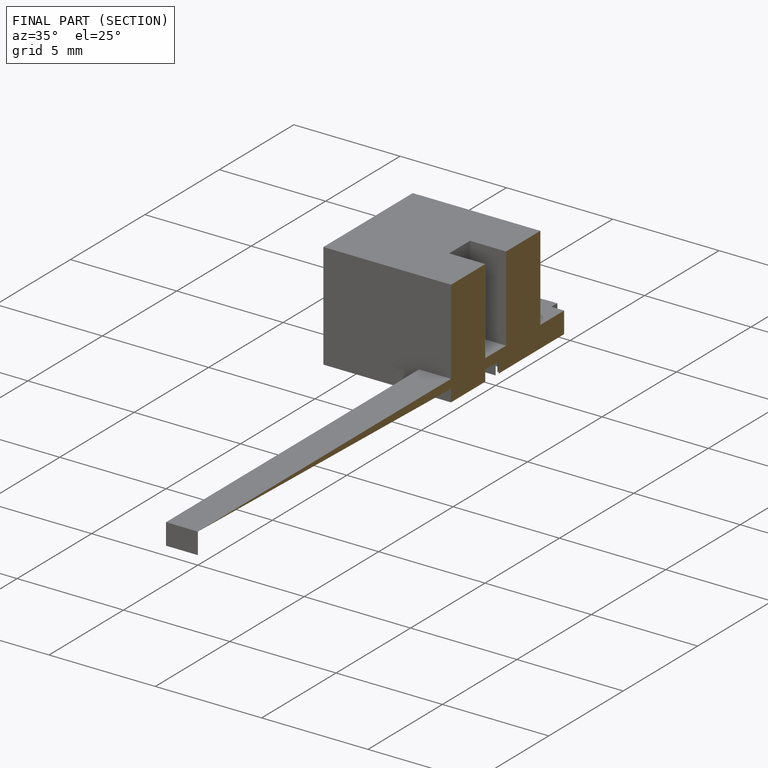
[diagram: finished part — half-section view (interior)]
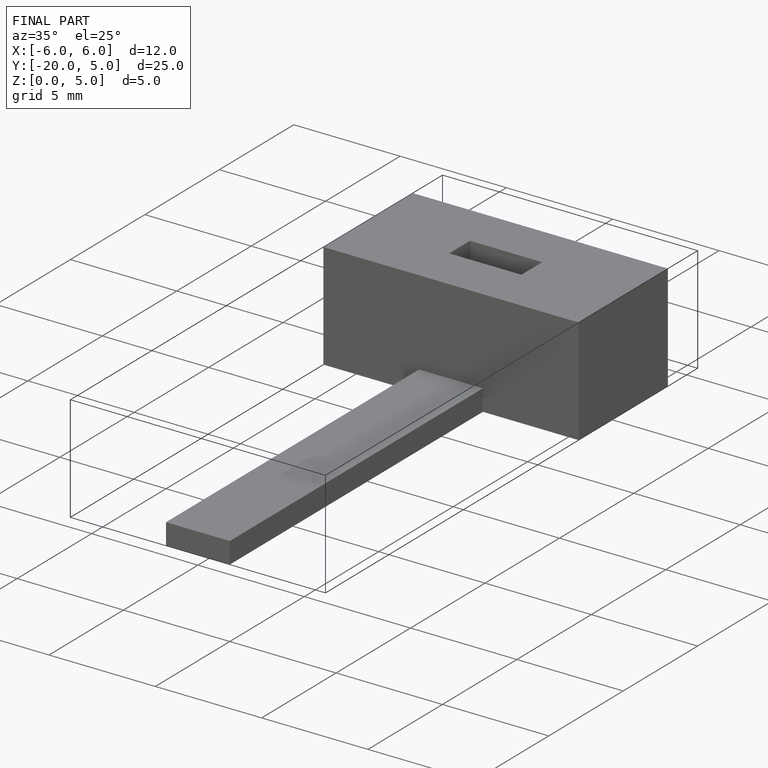
[diagram: finished part — iso view with bounding-box wireframe]
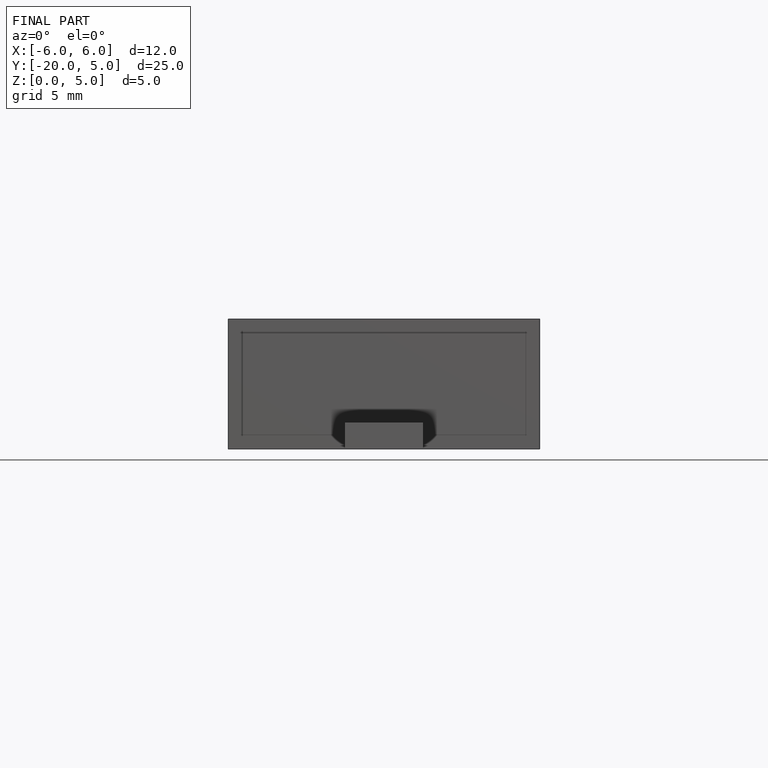
[diagram: finished part — front view with bounding-box wireframe]
